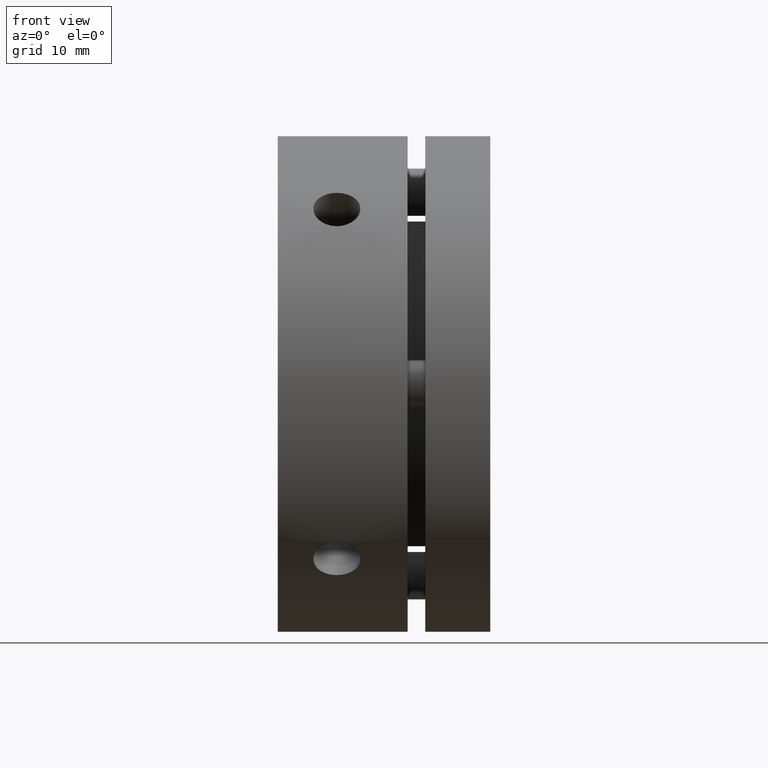
[diagram: clean part render]
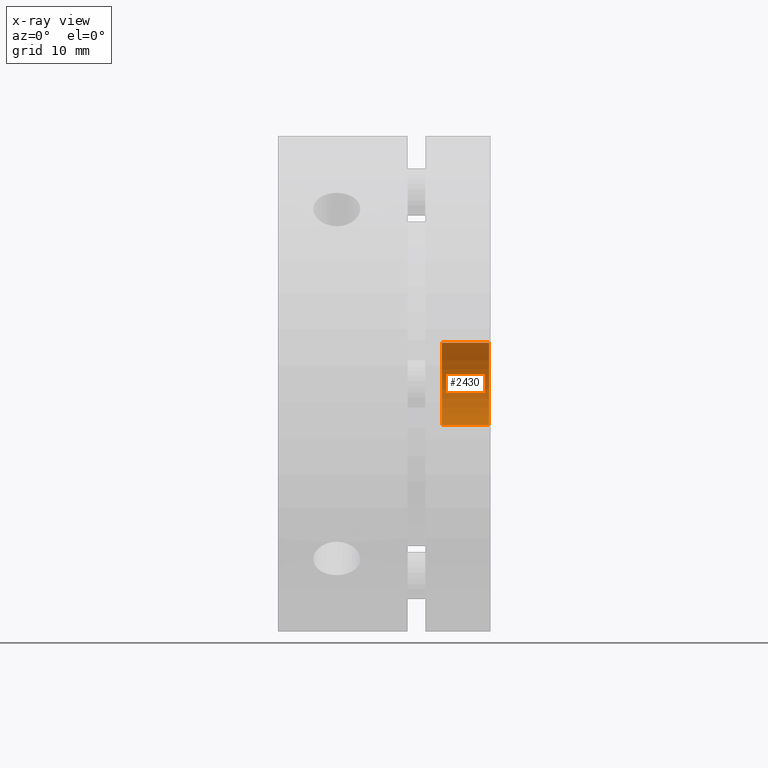
[diagram: x-ray — body ghosted, one internal face saturated and labeled with its STEP entity id]
A machine part, front view, then the same camera in x-ray: the body is ghosted and one INTERNAL B-rep face — a face not visible from any outside direction — is saturated and labeled: STEP entity #2430.
In plain terms, the highlighted cylindrical surface (partial cylindrical patch) has radius 3.5 mm, axis along (-1, 0, -0).
Its self-contained STEP definition (entity closure, byte-faithful):
#193 = FACE_OUTER_BOUND ( 'NONE', #2235, .T. ) ;
#198 = CYLINDRICAL_SURFACE ( 'NONE', #995, 3.500000000000000000 ) ;
#620 = DIRECTION ( 'NONE',  ( 0.0000000000000000000, 1.000000000000000000, 0.0000000000000000000 ) ) ;
#622 = CARTESIAN_POINT ( 'NONE',  ( 0.0000000000000000000, 4.000000000000000000, 0.0000000000000000000 ) ) ;
#643 = DIRECTION ( 'NONE',  ( 0.0000000000000000000, 0.0000000000000000000, 1.000000000000000000 ) ) ;
#644 = DIRECTION ( 'NONE',  ( 0.0000000000000000000, 1.000000000000000000, 0.0000000000000000000 ) ) ;
#647 = CARTESIAN_POINT ( 'NONE',  ( 0.0000000000000000000, 0.0000000000000000000, 0.0000000000000000000 ) ) ;
#693 = CARTESIAN_POINT ( 'NONE',  ( 4.286263797015736600E-016, 4.000000000000000000, 3.500000000000000000 ) ) ;
#698 = DIRECTION ( 'NONE',  ( -0.0000000000000000000, -1.000000000000000000, -0.0000000000000000000 ) ) ;
#922 = AXIS2_PLACEMENT_3D ( 'NONE', #647, #644, #643 ) ;
#926 = AXIS2_PLACEMENT_3D ( 'NONE', #622, #620, #2981 ) ;
#995 = AXIS2_PLACEMENT_3D ( 'NONE', #3326, #3328, #3329 ) ;
#1120 = EDGE_CURVE ( 'NONE', #1809, #1755, #2749, .T. ) ;
#1128 = EDGE_CURVE ( 'NONE', #1768, #1755, #2763, .T. ) ;
#1138 = EDGE_CURVE ( 'NONE', #1810, #1809, #2776, .T. ) ;
#1148 = EDGE_CURVE ( 'NONE', #1810, #1768, #2784, .T. ) ;
#1489 = ORIENTED_EDGE ( 'NONE', *, *, #1148, .T. ) ;
#1490 = ORIENTED_EDGE ( 'NONE', *, *, #1128, .T. ) ;
#1516 = ORIENTED_EDGE ( 'NONE', *, *, #1138, .F. ) ;
#1523 = ORIENTED_EDGE ( 'NONE', *, *, #1120, .F. ) ;
#1755 = VERTEX_POINT ( 'NONE', #3503 ) ;
#1768 = VERTEX_POINT ( 'NONE', #3485 ) ;
#1809 = VERTEX_POINT ( 'NONE', #3481 ) ;
#1810 = VERTEX_POINT ( 'NONE', #3468 ) ;
#2235 = EDGE_LOOP ( 'NONE', ( #1523, #1516, #1489, #1490 ) ) ;
#2430 = ADVANCED_FACE ( 'NONE', ( #193 ), #198, .T. ) ;
#2749 = LINE ( 'NONE', #693, #2753 ) ;
#2753 = VECTOR ( 'NONE', #698, 1000.000000000000000 ) ;
#2763 = CIRCLE ( 'NONE', #922, 3.500000000000000000 ) ;
#2776 = CIRCLE ( 'NONE', #926, 3.500000000000000000 ) ;
#2784 = LINE ( 'NONE', #2935, #2789 ) ;
#2789 = VECTOR ( 'NONE', #2927, 1000.000000000000000 ) ;
#2927 = DIRECTION ( 'NONE',  ( -0.0000000000000000000, -1.000000000000000000, -0.0000000000000000000 ) ) ;
#2935 = CARTESIAN_POINT ( 'NONE',  ( 0.0000000000000000000, 4.000000000000000000, -3.500000000000000000 ) ) ;
#2981 = DIRECTION ( 'NONE',  ( 0.0000000000000000000, 0.0000000000000000000, 1.000000000000000000 ) ) ;
#3326 = CARTESIAN_POINT ( 'NONE',  ( 0.0000000000000000000, 4.000000000000000000, 0.0000000000000000000 ) ) ;
#3328 = DIRECTION ( 'NONE',  ( -0.0000000000000000000, -1.000000000000000000, -0.0000000000000000000 ) ) ;
#3329 = DIRECTION ( 'NONE',  ( 0.0000000000000000000, 0.0000000000000000000, -1.000000000000000000 ) ) ;
#3468 = CARTESIAN_POINT ( 'NONE',  ( 0.0000000000000000000, 4.000000000000000000, -3.500000000000000000 ) ) ;
#3481 = CARTESIAN_POINT ( 'NONE',  ( 4.286263797015736600E-016, 4.000000000000000000, 3.500000000000000000 ) ) ;
#3485 = CARTESIAN_POINT ( 'NONE',  ( 0.0000000000000000000, 0.0000000000000000000, -3.500000000000000000 ) ) ;
#3503 = CARTESIAN_POINT ( 'NONE',  ( 4.286263797015736600E-016, 0.0000000000000000000, 3.500000000000000000 ) ) ;